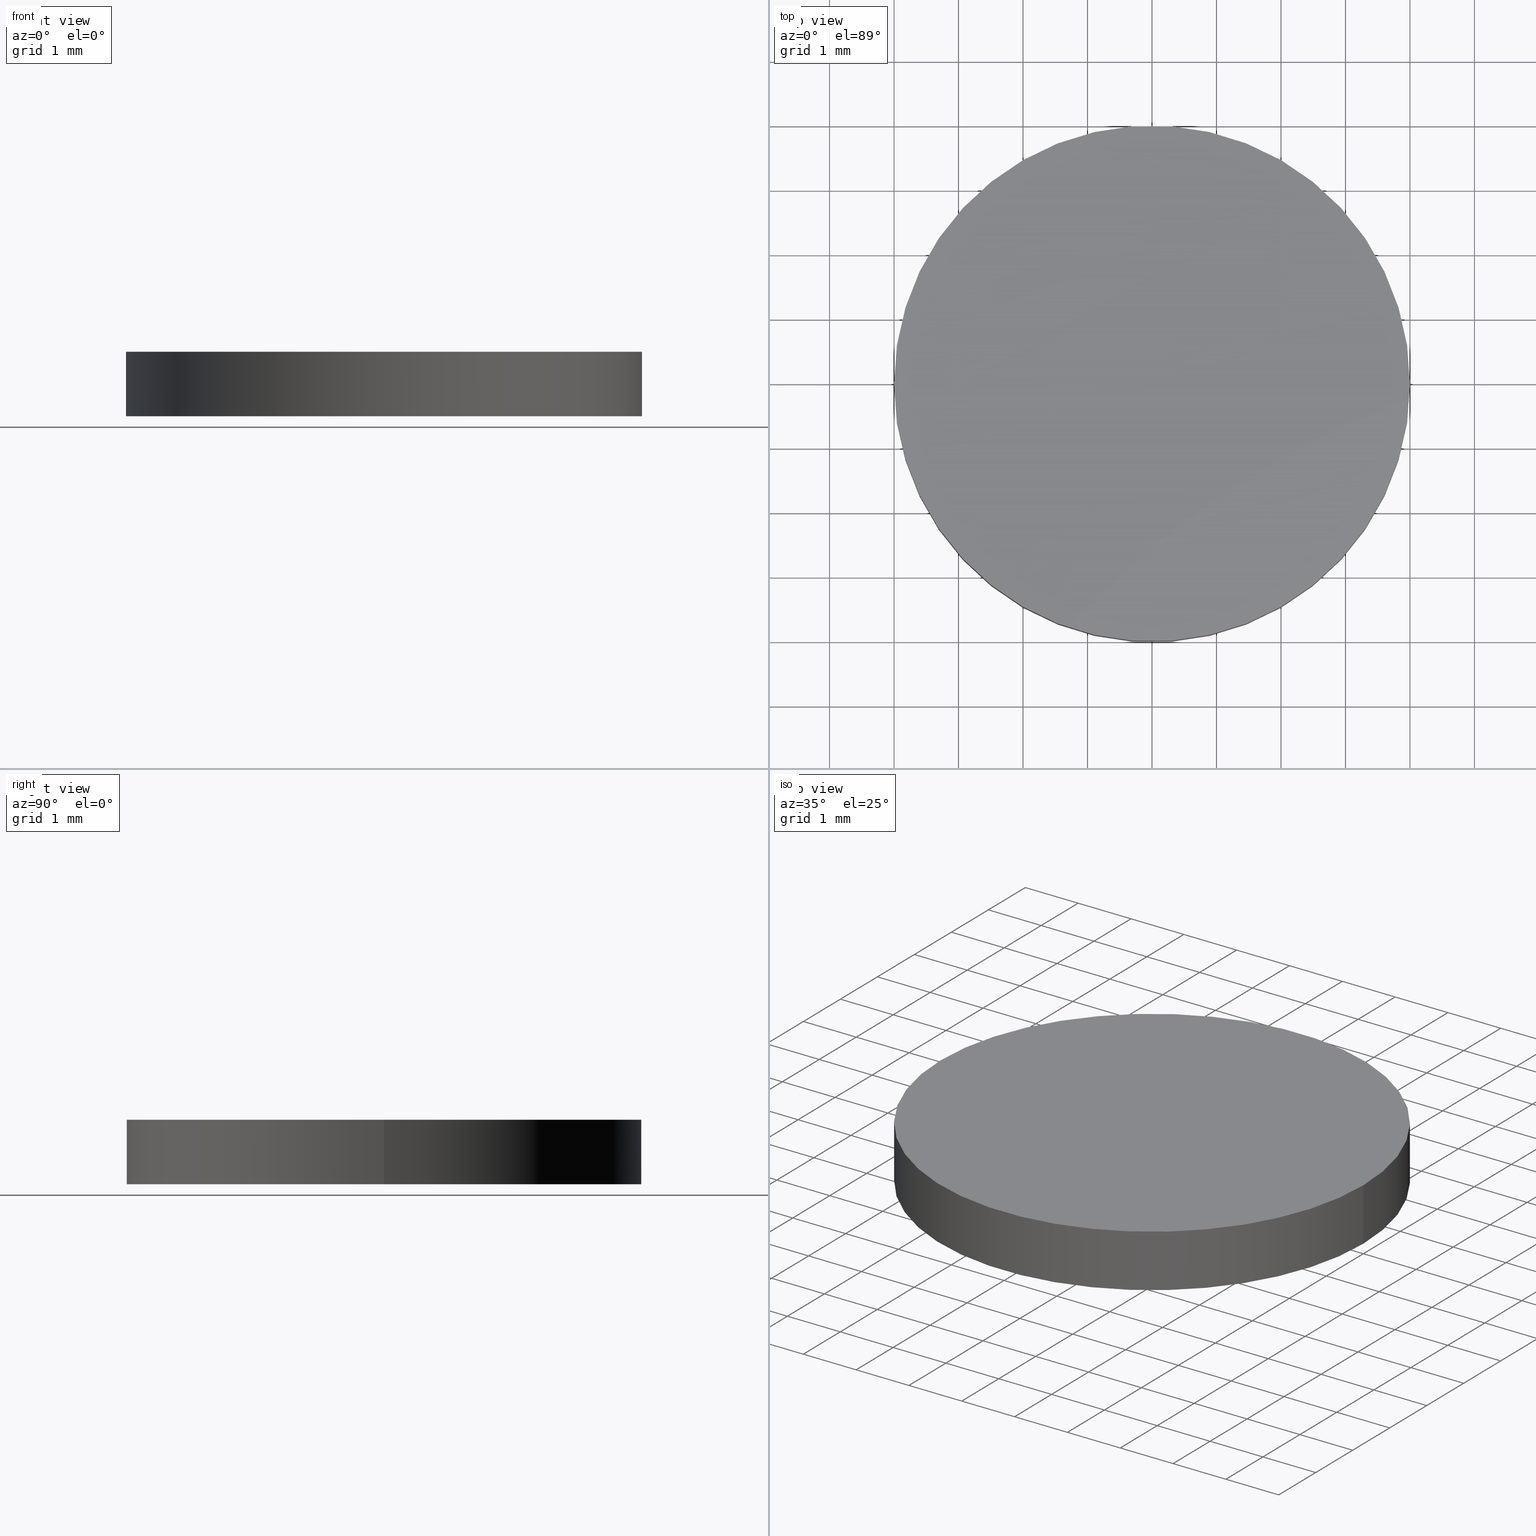
[diagram: canonical four-view strip — front | top / right | iso, engineering-drawing reading convention]
A machine part, canonical four-view strip (front | top / right | iso — engineering-drawing reading convention). The complete STEP part file that produces these views, byte-faithful:
ISO-10303-21;
HEADER;
FILE_DESCRIPTION (( 'STEP AP214' ),
    '1' );
FILE_NAME ('190113.STEP',
    '2019-07-17T02:06:38',
    ( 'user' ),
    ( '΢���й�' ),
    'SwSTEP 2.0',
    'SolidWorks 2016',
    '' );
FILE_SCHEMA (( 'AUTOMOTIVE_DESIGN' ));
ENDSEC;

DATA;
#1 = CARTESIAN_POINT ( 'NONE',  ( -4.000000000000000000, 0.0000000000000000000, 1.000000000000000000 ) ) ;
#2 = CYLINDRICAL_SURFACE ( 'NONE', #106, 4.000000000000000000 ) ;
#3 = ORIENTED_EDGE ( 'NONE', *, *, #48, .T. ) ;
#4 = AXIS2_PLACEMENT_3D ( 'NONE', #89, #22, #135 ) ;
#5 = LINE ( 'NONE', #77, #12 ) ;
#6 = SURFACE_STYLE_USAGE ( .BOTH. , #88 ) ;
#7 = DIRECTION ( 'NONE',  ( 0.0000000000000000000, 0.0000000000000000000, 1.000000000000000000 ) ) ;
#8 = ORIENTED_EDGE ( 'NONE', *, *, #81, .F. ) ;
#9 = DIRECTION ( 'NONE',  ( 0.0000000000000000000, 0.0000000000000000000, 1.000000000000000000 ) ) ;
#10 = VECTOR ( 'NONE', #49, 1000.000000000000000 ) ;
#11 = CARTESIAN_POINT ( 'NONE',  ( 0.0000000000000000000, 0.0000000000000000000, 0.0000000000000000000 ) ) ;
#12 = VECTOR ( 'NONE', #120, 1000.000000000000000 ) ;
#13 = PRESENTATION_LAYER_ASSIGNMENT (  '', '', ( #131 ) ) ;
#14 = ORIENTED_EDGE ( 'NONE', *, *, #57, .F. ) ;
#15 =( LENGTH_UNIT ( ) NAMED_UNIT ( * ) SI_UNIT ( .MILLI., .METRE. ) );
#16 = VERTEX_POINT ( 'NONE', #112 ) ;
#17 = DIRECTION ( 'NONE',  ( -1.000000000000000000, 0.0000000000000000000, 0.0000000000000000000 ) ) ;
#18 = APPLICATION_CONTEXT ( 'automotive_design' ) ;
#19 = MECHANICAL_DESIGN_GEOMETRIC_PRESENTATION_REPRESENTATION (  '', ( #131 ), #26 ) ;
#20 = FILL_AREA_STYLE ('',( #45 ) ) ;
#21 = DIRECTION ( 'NONE',  ( -0.0000000000000000000, -0.0000000000000000000, -1.000000000000000000 ) ) ;
#22 = DIRECTION ( 'NONE',  ( -0.0000000000000000000, -0.0000000000000000000, -1.000000000000000000 ) ) ;
#23 = CARTESIAN_POINT ( 'NONE',  ( 0.0000000000000000000, 0.0000000000000000000, 1.000000000000000000 ) ) ;
#24 = UNCERTAINTY_MEASURE_WITH_UNIT (LENGTH_MEASURE( 1.000000000000000100E-005 ), #127, 'distance_accuracy_value', 'NONE');
#25 = FACE_OUTER_BOUND ( 'NONE', #121, .T. ) ;
#26 =( GEOMETRIC_REPRESENTATION_CONTEXT ( 3 ) GLOBAL_UNCERTAINTY_ASSIGNED_CONTEXT ( ( #73 ) ) GLOBAL_UNIT_ASSIGNED_CONTEXT ( ( #15, #40, #107 ) ) REPRESENTATION_CONTEXT ( 'NONE', 'WORKASPACE' ) );
#27 = DIRECTION ( 'NONE',  ( 1.000000000000000000, 0.0000000000000000000, 0.0000000000000000000 ) ) ;
#28 = CLOSED_SHELL ( 'NONE', ( #97, #140, #53, #42 ) ) ;
#29 = DIRECTION ( 'NONE',  ( 0.0000000000000000000, 0.0000000000000000000, 1.000000000000000000 ) ) ;
#30 = COLOUR_RGB ( '',1.000000000000000000, 1.000000000000000000, 1.000000000000000000 ) ;
#31 = UNCERTAINTY_MEASURE_WITH_UNIT (LENGTH_MEASURE( 1.000000000000000100E-005 ), #65, 'distance_accuracy_value', 'NONE');
#32 = PRESENTATION_STYLE_ASSIGNMENT (( #6 ) ) ;
#33 = CARTESIAN_POINT ( 'NONE',  ( 0.0000000000000000000, 0.0000000000000000000, 1.000000000000000000 ) ) ;
#34 = PRESENTATION_STYLE_ASSIGNMENT (( #125 ) ) ;
#35 = EDGE_LOOP ( 'NONE', ( #138, #14, #70, #38 ) ) ;
#36 = ORIENTED_EDGE ( 'NONE', *, *, #86, .F. ) ;
#37 = PLANE ( 'NONE',  #66 ) ;
#38 = ORIENTED_EDGE ( 'NONE', *, *, #92, .T. ) ;
#39 = VERTEX_POINT ( 'NONE', #116 ) ;
#40 =( NAMED_UNIT ( * ) PLANE_ANGLE_UNIT ( ) SI_UNIT ( $, .RADIAN. ) );
#41 = CARTESIAN_POINT ( 'NONE',  ( 0.0000000000000000000, 0.0000000000000000000, 0.0000000000000000000 ) ) ;
#42 = ADVANCED_FACE ( 'NONE', ( #119 ), #61, .F. ) ;
#43 = DIRECTION ( 'NONE',  ( 0.0000000000000000000, 0.0000000000000000000, 1.000000000000000000 ) ) ;
#44 = AXIS2_PLACEMENT_3D ( 'NONE', #114, #29, #139 ) ;
#45 = FILL_AREA_STYLE_COLOUR ( '', #59 ) ;
#46 = AXIS2_PLACEMENT_3D ( 'NONE', #41, #43, #132 ) ;
#47 = DIRECTION ( 'NONE',  ( 1.000000000000000000, 0.0000000000000000000, 0.0000000000000000000 ) ) ;
#48 = EDGE_CURVE ( 'NONE', #111, #39, #5, .T. ) ;
#49 = DIRECTION ( 'NONE',  ( -0.0000000000000000000, -0.0000000000000000000, -1.000000000000000000 ) ) ;
#50 = DIRECTION ( 'NONE',  ( 1.000000000000000000, 0.0000000000000000000, 0.0000000000000000000 ) ) ;
#51 = EDGE_LOOP ( 'NONE', ( #109, #8 ) ) ;
#52 = DIRECTION ( 'NONE',  ( 0.0000000000000000000, 0.0000000000000000000, 1.000000000000000000 ) ) ;
#53 = ADVANCED_FACE ( 'NONE', ( #25 ), #37, .T. ) ;
#54 = PRODUCT_DEFINITION ( 'δ֪', '', #64, #100 ) ;
#55 = AXIS2_PLACEMENT_3D ( 'NONE', #23, #7, #27 ) ;
#56 = ORIENTED_EDGE ( 'NONE', *, *, #71, .F. ) ;
#57 = EDGE_CURVE ( 'NONE', #83, #111, #94, .T. ) ;
#58 = SHAPE_DEFINITION_REPRESENTATION ( #134, #67 ) ;
#59 = COLOUR_RGB ( '',1.000000000000000000, 1.000000000000000000, 1.000000000000000000 ) ;
#60 =( NAMED_UNIT ( * ) SI_UNIT ( $, .STERADIAN. ) SOLID_ANGLE_UNIT ( ) );
#61 = PLANE ( 'NONE',  #46 ) ;
#62 = CARTESIAN_POINT ( 'NONE',  ( -4.000000000000000000, 0.0000000000000000000, 1.000000000000000000 ) ) ;
#63 = CIRCLE ( 'NONE', #90, 4.000000000000000000 ) ;
#64 = PRODUCT_DEFINITION_FORMATION_WITH_SPECIFIED_SOURCE ( '�κ�', '', #72, .NOT_KNOWN. ) ;
#65 =( LENGTH_UNIT ( ) NAMED_UNIT ( * ) SI_UNIT ( .MILLI., .METRE. ) );
#66 = AXIS2_PLACEMENT_3D ( 'NONE', #79, #69, #104 ) ;
#67 = ADVANCED_BREP_SHAPE_REPRESENTATION ( '190113', ( #126, #44 ), #124 ) ;
#68 = DIRECTION ( 'NONE',  ( 0.0000000000000000000, 0.0000000000000000000, 1.000000000000000000 ) ) ;
#69 = DIRECTION ( 'NONE',  ( 0.0000000000000000000, 0.0000000000000000000, 1.000000000000000000 ) ) ;
#70 = ORIENTED_EDGE ( 'NONE', *, *, #71, .T. ) ;
#71 = EDGE_CURVE ( 'NONE', #83, #16, #113, .T. ) ;
#72 = PRODUCT ( '190113', '190113', '', ( #82 ) ) ;
#73 = UNCERTAINTY_MEASURE_WITH_UNIT (LENGTH_MEASURE( 1.000000000000000100E-005 ), #15, 'distance_accuracy_value', 'NONE');
#74 = ORIENTED_EDGE ( 'NONE', *, *, #57, .T. ) ;
#75 = CIRCLE ( 'NONE', #85, 4.000000000000000000 ) ;
#76 = PRODUCT_RELATED_PRODUCT_CATEGORY ( 'part', '', ( #72 ) ) ;
#77 = CARTESIAN_POINT ( 'NONE',  ( 4.000000000000000000, 4.898587196589412800E-016, 1.000000000000000000 ) ) ;
#78 = AXIS2_PLACEMENT_3D ( 'NONE', #11, #9, #87 ) ;
#79 = CARTESIAN_POINT ( 'NONE',  ( 0.0000000000000000000, 0.0000000000000000000, 1.000000000000000000 ) ) ;
#80 = CARTESIAN_POINT ( 'NONE',  ( 0.0000000000000000000, 0.0000000000000000000, 1.000000000000000000 ) ) ;
#81 = EDGE_CURVE ( 'NONE', #39, #16, #99, .T. ) ;
#82 = PRODUCT_CONTEXT ( 'NONE', #115, 'mechanical' ) ;
#83 = VERTEX_POINT ( 'NONE', #1 ) ;
#84 = FACE_OUTER_BOUND ( 'NONE', #35, .T. ) ;
#85 = AXIS2_PLACEMENT_3D ( 'NONE', #33, #52, #50 ) ;
#86 = EDGE_CURVE ( 'NONE', #111, #83, #75, .T. ) ;
#87 = DIRECTION ( 'NONE',  ( 1.000000000000000000, 0.0000000000000000000, 0.0000000000000000000 ) ) ;
#88 = SURFACE_SIDE_STYLE ('',( #129 ) ) ;
#89 = CARTESIAN_POINT ( 'NONE',  ( 0.0000000000000000000, 0.0000000000000000000, 1.000000000000000000 ) ) ;
#90 = AXIS2_PLACEMENT_3D ( 'NONE', #98, #68, #47 ) ;
#91 = EDGE_LOOP ( 'NONE', ( #36, #3, #128, #56 ) ) ;
#92 = EDGE_CURVE ( 'NONE', #16, #39, #63, .T. ) ;
#93 = SURFACE_STYLE_FILL_AREA ( #133 ) ;
#94 = CIRCLE ( 'NONE', #55, 4.000000000000000000 ) ;
#95 = PRESENTATION_LAYER_ASSIGNMENT (  '', '', ( #101 ) ) ;
#96 = CARTESIAN_POINT ( 'NONE',  ( 4.000000000000000000, 4.898587196589412800E-016, 1.000000000000000000 ) ) ;
#97 = ADVANCED_FACE ( 'NONE', ( #117 ), #2, .T. ) ;
#98 = CARTESIAN_POINT ( 'NONE',  ( 0.0000000000000000000, 0.0000000000000000000, 0.0000000000000000000 ) ) ;
#99 = CIRCLE ( 'NONE', #78, 4.000000000000000000 ) ;
#100 = PRODUCT_DEFINITION_CONTEXT ( 'detailed design', #18, 'design' ) ;
#101 = STYLED_ITEM ( 'NONE', ( #34 ), #126 ) ;
#102 = CYLINDRICAL_SURFACE ( 'NONE', #4, 4.000000000000000000 ) ;
#103 =( NAMED_UNIT ( * ) PLANE_ANGLE_UNIT ( ) SI_UNIT ( $, .RADIAN. ) );
#104 = DIRECTION ( 'NONE',  ( 1.000000000000000000, 0.0000000000000000000, -0.0000000000000000000 ) ) ;
#105 = APPLICATION_PROTOCOL_DEFINITION ( 'draft international standard', 'automotive_design', 1998, #115 ) ;
#106 = AXIS2_PLACEMENT_3D ( 'NONE', #80, #21, #17 ) ;
#107 =( NAMED_UNIT ( * ) SI_UNIT ( $, .STERADIAN. ) SOLID_ANGLE_UNIT ( ) );
#108 = ORIENTED_EDGE ( 'NONE', *, *, #86, .T. ) ;
#109 = ORIENTED_EDGE ( 'NONE', *, *, #92, .F. ) ;
#110 = MECHANICAL_DESIGN_GEOMETRIC_PRESENTATION_REPRESENTATION (  '', ( #101 ), #118 ) ;
#111 = VERTEX_POINT ( 'NONE', #96 ) ;
#112 = CARTESIAN_POINT ( 'NONE',  ( -4.000000000000000000, 0.0000000000000000000, 0.0000000000000000000 ) ) ;
#113 = LINE ( 'NONE', #62, #10 ) ;
#114 = CARTESIAN_POINT ( 'NONE',  ( 0.0000000000000000000, 0.0000000000000000000, 0.0000000000000000000 ) ) ;
#115 = APPLICATION_CONTEXT ( 'automotive_design' ) ;
#116 = CARTESIAN_POINT ( 'NONE',  ( 4.000000000000000000, 4.898587196589412800E-016, 0.0000000000000000000 ) ) ;
#117 = FACE_OUTER_BOUND ( 'NONE', #91, .T. ) ;
#118 =( GEOMETRIC_REPRESENTATION_CONTEXT ( 3 ) GLOBAL_UNCERTAINTY_ASSIGNED_CONTEXT ( ( #24 ) ) GLOBAL_UNIT_ASSIGNED_CONTEXT ( ( #127, #130, #122 ) ) REPRESENTATION_CONTEXT ( 'NONE', 'WORKASPACE' ) );
#119 = FACE_OUTER_BOUND ( 'NONE', #51, .T. ) ;
#120 = DIRECTION ( 'NONE',  ( -0.0000000000000000000, -0.0000000000000000000, -1.000000000000000000 ) ) ;
#121 = EDGE_LOOP ( 'NONE', ( #74, #108 ) ) ;
#122 =( NAMED_UNIT ( * ) SI_UNIT ( $, .STERADIAN. ) SOLID_ANGLE_UNIT ( ) );
#123 = SURFACE_SIDE_STYLE ('',( #93 ) ) ;
#124 =( GEOMETRIC_REPRESENTATION_CONTEXT ( 3 ) GLOBAL_UNCERTAINTY_ASSIGNED_CONTEXT ( ( #31 ) ) GLOBAL_UNIT_ASSIGNED_CONTEXT ( ( #65, #103, #60 ) ) REPRESENTATION_CONTEXT ( 'NONE', 'WORKASPACE' ) );
#125 = SURFACE_STYLE_USAGE ( .BOTH. , #123 ) ;
#126 = MANIFOLD_SOLID_BREP ( '͹̨-����1', #28 ) ;
#127 =( LENGTH_UNIT ( ) NAMED_UNIT ( * ) SI_UNIT ( .MILLI., .METRE. ) );
#128 = ORIENTED_EDGE ( 'NONE', *, *, #81, .T. ) ;
#129 = SURFACE_STYLE_FILL_AREA ( #20 ) ;
#130 =( NAMED_UNIT ( * ) PLANE_ANGLE_UNIT ( ) SI_UNIT ( $, .RADIAN. ) );
#131 = STYLED_ITEM ( 'NONE', ( #32 ), #67 ) ;
#132 = DIRECTION ( 'NONE',  ( 1.000000000000000000, 0.0000000000000000000, -0.0000000000000000000 ) ) ;
#133 = FILL_AREA_STYLE ('',( #137 ) ) ;
#134 = PRODUCT_DEFINITION_SHAPE ( 'NONE', 'NONE',  #54 ) ;
#135 = DIRECTION ( 'NONE',  ( -1.000000000000000000, 0.0000000000000000000, 0.0000000000000000000 ) ) ;
#136 = APPLICATION_PROTOCOL_DEFINITION ( 'draft international standard', 'automotive_design', 1998, #18 ) ;
#137 = FILL_AREA_STYLE_COLOUR ( '', #30 ) ;
#138 = ORIENTED_EDGE ( 'NONE', *, *, #48, .F. ) ;
#139 = DIRECTION ( 'NONE',  ( 1.000000000000000000, 0.0000000000000000000, 0.0000000000000000000 ) ) ;
#140 = ADVANCED_FACE ( 'NONE', ( #84 ), #102, .T. ) ;
ENDSEC;
END-ISO-10303-21;
